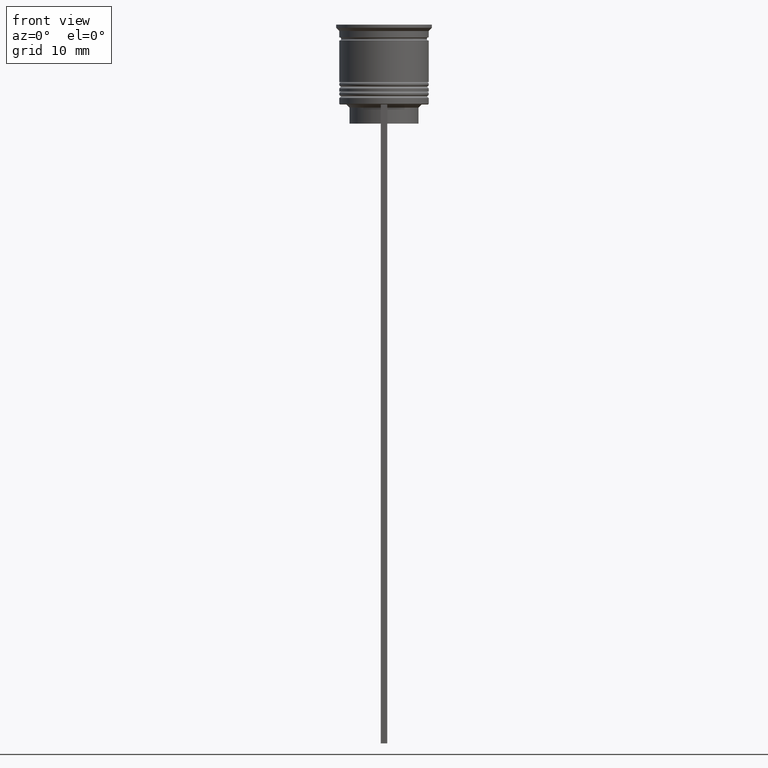
[diagram: clean part render]
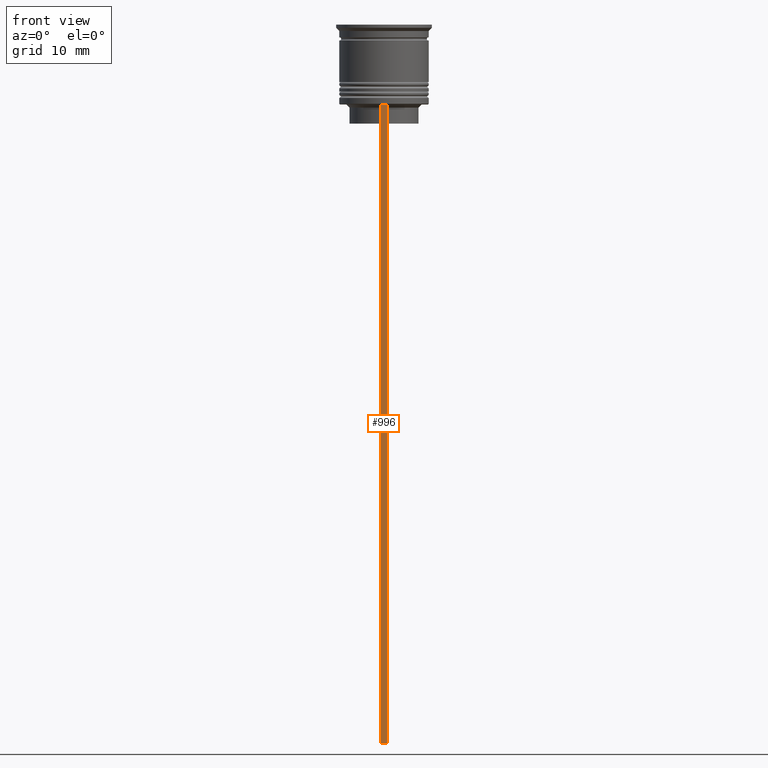
[diagram: same view with one face highlighted and labeled with its STEP entity id]
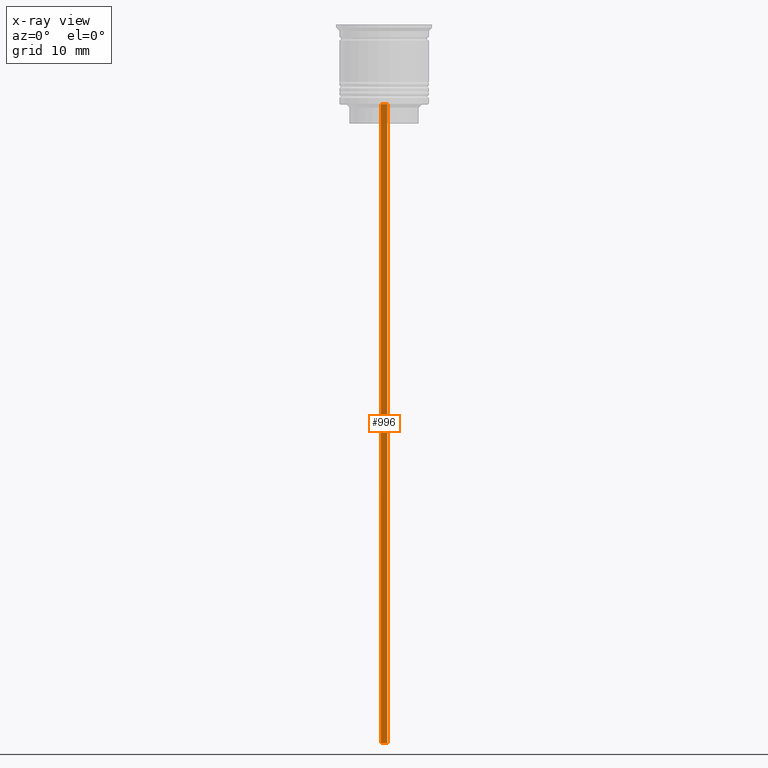
[diagram: x-ray of the same camera — body ghosted, the highlighted face saturated]
A machine part, front view. The second image highlights one B-rep face of the part: STEP entity #996.
The next image is the same camera in x-ray: the body ghosted, the highlighted face saturated — about 0% of this face is hidden behind the body in this view.
In plain terms, the highlighted planar face has unit normal (0, -1, -0).
Its self-contained STEP definition (entity closure, byte-faithful):
#86 = VERTEX_POINT ( 'NONE', #1953 ) ;
#176 = PLANE ( 'NONE',  #292 ) ;
#181 = DIRECTION ( 'NONE',  ( 0.000000000000000000, 0.000000000000000000, -1.000000000000000000 ) ) ;
#292 = AXIS2_PLACEMENT_3D ( 'NONE', #1148, #928, #1319 ) ;
#355 = DIRECTION ( 'NONE',  ( 0.000000000000000000, 0.000000000000000000, -1.000000000000000000 ) ) ;
#400 = VECTOR ( 'NONE', #797, 1000.000000000000000 ) ;
#432 = CARTESIAN_POINT ( 'NONE',  ( -0.5000000000000000000, -6.999999999999997335, -112.5000000000000000 ) ) ;
#542 = FACE_OUTER_BOUND ( 'NONE', #685, .T. ) ;
#624 = EDGE_CURVE ( 'NONE', #935, #86, #1142, .T. ) ;
#685 = EDGE_LOOP ( 'NONE', ( #705, #2065, #2339, #2273 ) ) ;
#705 = ORIENTED_EDGE ( 'NONE', *, *, #1588, .F. ) ;
#796 = VECTOR ( 'NONE', #2307, 1000.000000000000000 ) ;
#797 = DIRECTION ( 'NONE',  ( 1.000000000000000000, 0.000000000000000000, 0.000000000000000000 ) ) ;
#928 = DIRECTION ( 'NONE',  ( 0.000000000000000000, -1.000000000000000000, -0.000000000000000000 ) ) ;
#935 = VERTEX_POINT ( 'NONE', #2203 ) ;
#996 = ADVANCED_FACE ( 'NONE', ( #542 ), #176, .T. ) ;
#1142 = LINE ( 'NONE', #1903, #1567 ) ;
#1148 = CARTESIAN_POINT ( 'NONE',  ( 0.5000000000000000000, -6.999999999999997335, 1.535668847618198329 ) ) ;
#1170 = VERTEX_POINT ( 'NONE', #432 ) ;
#1295 = CARTESIAN_POINT ( 'NONE',  ( -0.5000000000000000000, -6.999999999999997335, -12.50000000000000000 ) ) ;
#1319 = DIRECTION ( 'NONE',  ( 0.000000000000000000, 0.000000000000000000, -1.000000000000000000 ) ) ;
#1472 = VERTEX_POINT ( 'NONE', #1295 ) ;
#1527 = EDGE_CURVE ( 'NONE', #86, #1170, #2348, .T. ) ;
#1528 = CARTESIAN_POINT ( 'NONE',  ( 0.5000000000000000000, -6.999999999999997335, -112.5000000000000000 ) ) ;
#1567 = VECTOR ( 'NONE', #181, 1000.000000000000000 ) ;
#1588 = EDGE_CURVE ( 'NONE', #1472, #935, #2106, .T. ) ;
#1739 = CARTESIAN_POINT ( 'NONE',  ( 0.5000000000000000000, -6.999999999999997335, -12.50000000000000000 ) ) ;
#1903 = CARTESIAN_POINT ( 'NONE',  ( 0.5000000000000000000, -6.999999999999997335, 1.535668847618198329 ) ) ;
#1953 = CARTESIAN_POINT ( 'NONE',  ( 0.5000000000000000000, -6.999999999999997335, -112.5000000000000000 ) ) ;
#2065 = ORIENTED_EDGE ( 'NONE', *, *, #2332, .T. ) ;
#2071 = CARTESIAN_POINT ( 'NONE',  ( -0.5000000000000000000, -6.999999999999997335, 1.535668847618198329 ) ) ;
#2106 = LINE ( 'NONE', #1739, #400 ) ;
#2203 = CARTESIAN_POINT ( 'NONE',  ( 0.5000000000000000000, -6.999999999999997335, -12.50000000000000000 ) ) ;
#2265 = LINE ( 'NONE', #2071, #2484 ) ;
#2273 = ORIENTED_EDGE ( 'NONE', *, *, #624, .F. ) ;
#2307 = DIRECTION ( 'NONE',  ( -1.000000000000000000, 0.000000000000000000, 0.000000000000000000 ) ) ;
#2332 = EDGE_CURVE ( 'NONE', #1472, #1170, #2265, .T. ) ;
#2339 = ORIENTED_EDGE ( 'NONE', *, *, #1527, .F. ) ;
#2348 = LINE ( 'NONE', #1528, #796 ) ;
#2484 = VECTOR ( 'NONE', #355, 1000.000000000000000 ) ;